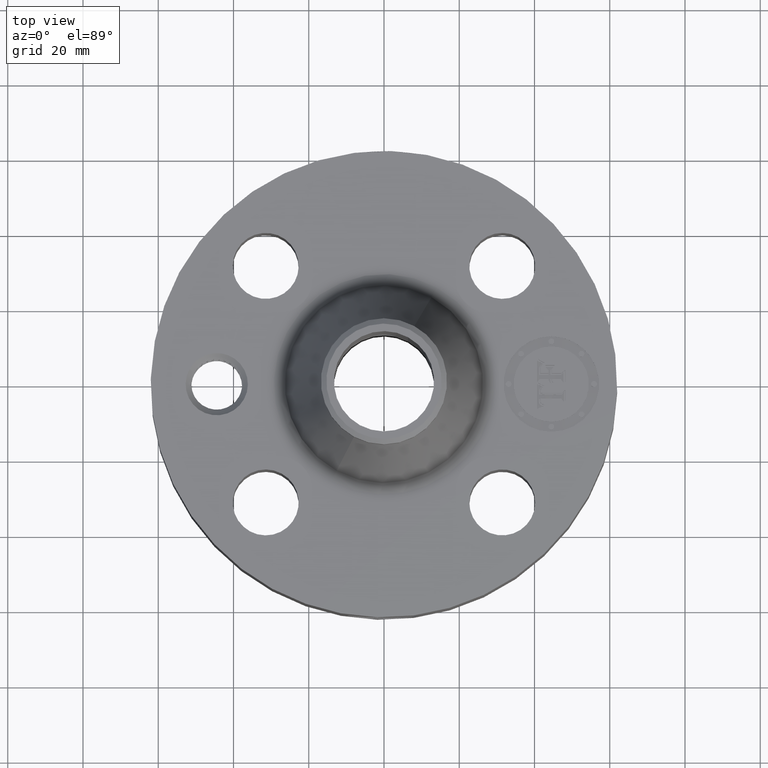
[diagram: clean part render]
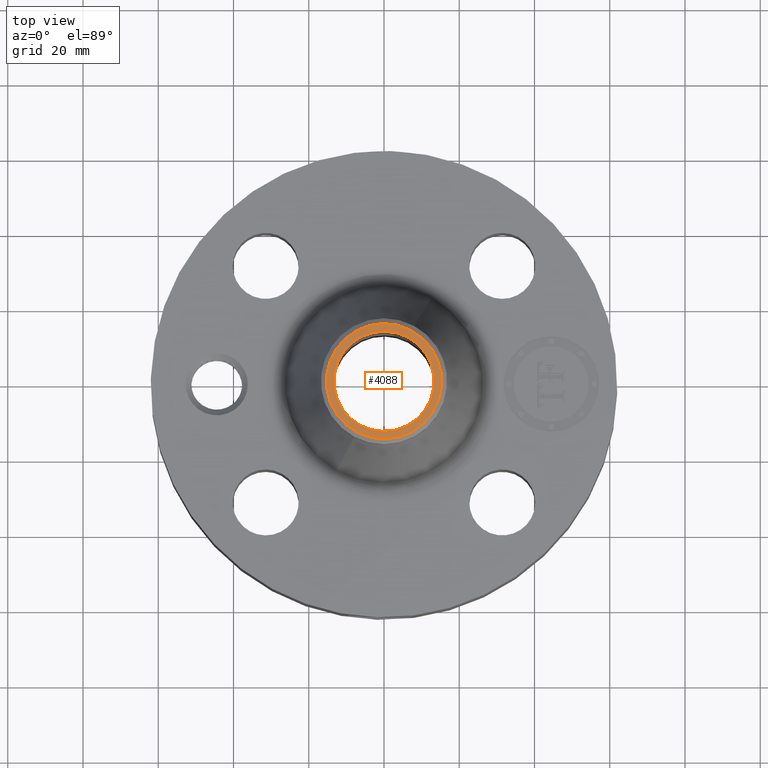
[diagram: same view with one face highlighted and labeled with its STEP entity id]
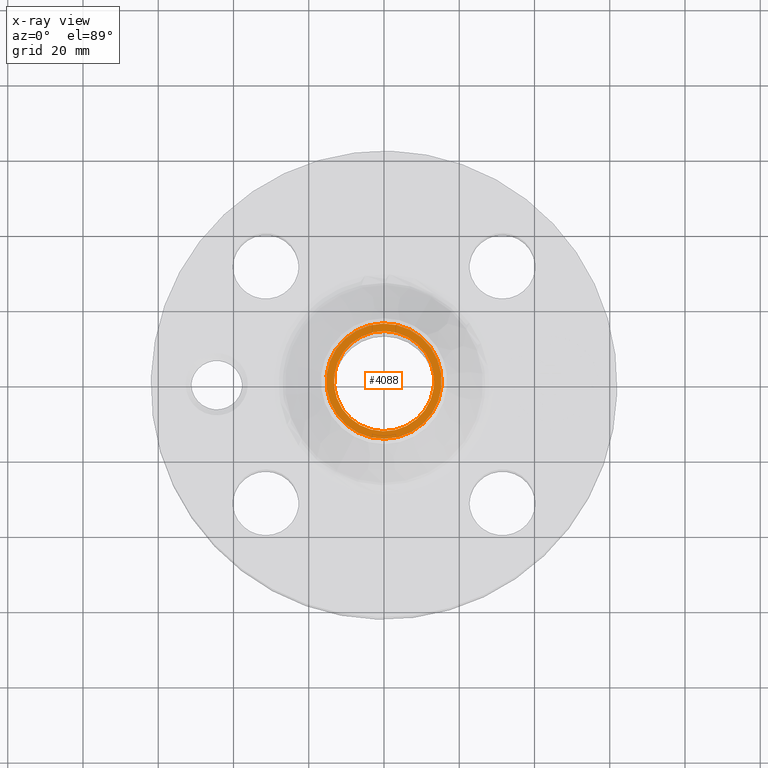
[diagram: x-ray of the same camera — body ghosted, the highlighted face saturated]
A machine part, top view. The second image highlights one B-rep face of the part: STEP entity #4088.
The next image is the same camera in x-ray: the body ghosted, the highlighted face saturated — about 0% of this face is hidden behind the body in this view.
In plain terms, the highlighted planar face has unit normal (0, 0, -1).
Its self-contained STEP definition (entity closure, byte-faithful):
#2819=AXIS2_PLACEMENT_3D('Circle Axis2P3D',#2817,#2818,$) ;
#2887=AXIS2_PLACEMENT_3D('Circle Axis2P3D',#2885,#2886,$) ;
#4064=AXIS2_PLACEMENT_3D('Plane Axis2P3D',#4061,#4062,#4063) ;
#4068=AXIS2_PLACEMENT_3D('Circle Axis2P3D',#4066,#4067,$) ;
#4077=AXIS2_PLACEMENT_3D('Circle Axis2P3D',#4075,#4076,$) ;
#2817=CARTESIAN_POINT('Axis2P3D Location',(0.,0.,3.31000000001)) ;
#2821=CARTESIAN_POINT('Vertex',(0.251458694999,0.460292053713,3.31000000001)) ;
#2823=CARTESIAN_POINT('Vertex',(-0.251458694999,-0.460292053713,3.31000000001)) ;
#2885=CARTESIAN_POINT('Axis2P3D Location',(0.,0.,3.31000000001)) ;
#4061=CARTESIAN_POINT('Axis2P3D Location',(0.,0.660000000003,3.31000000001)) ;
#4066=CARTESIAN_POINT('Axis2P3D Location',(0.,0.,3.31000000001)) ;
#4070=CARTESIAN_POINT('Vertex',(0.289208737409,-0.529393042839,3.31000000001)) ;
#4072=CARTESIAN_POINT('Vertex',(-0.289208737409,0.529393042839,3.31000000001)) ;
#4075=CARTESIAN_POINT('Axis2P3D Location',(0.,0.,3.31000000001)) ;
#2818=DIRECTION('Axis2P3D Direction',(0.,0.,-0.0393700787402)) ;
#2886=DIRECTION('Axis2P3D Direction',(0.,0.,-0.0393700787402)) ;
#4062=DIRECTION('Axis2P3D Direction',(0.,0.,-0.0393700787402)) ;
#4063=DIRECTION('Axis2P3D XDirection',(0.0393700787402,0.,0.)) ;
#4067=DIRECTION('Axis2P3D Direction',(0.,0.,-0.0393700787402)) ;
#4076=DIRECTION('Axis2P3D Direction',(0.,0.,-0.0393700787402)) ;
#4081=ORIENTED_EDGE('',*,*,#4074,.T.) ;
#4082=ORIENTED_EDGE('',*,*,#4079,.T.) ;
#4085=ORIENTED_EDGE('',*,*,#2889,.T.) ;
#4086=ORIENTED_EDGE('',*,*,#2825,.T.) ;
#4087=FACE_BOUND('',#4084,.T.) ;
#4088=ADVANCED_FACE('PartBody',(#4083,#4087),#4065,.F.) ;
#2820=CIRCLE('generated circle',#2819,0.524500000002) ;
#2888=CIRCLE('generated circle',#2887,0.524500000002) ;
#4069=CIRCLE('generated circle',#4068,0.603240157482) ;
#4078=CIRCLE('generated circle',#4077,0.603240157482) ;
#2825=EDGE_CURVE('',#2822,#2824,#2820,.T.) ;
#2889=EDGE_CURVE('',#2824,#2822,#2888,.T.) ;
#4074=EDGE_CURVE('',#4071,#4073,#4069,.F.) ;
#4079=EDGE_CURVE('',#4073,#4071,#4078,.F.) ;
#4080=EDGE_LOOP('',(#4081,#4082)) ;
#4084=EDGE_LOOP('',(#4085,#4086)) ;
#4083=FACE_OUTER_BOUND('',#4080,.T.) ;
#4065=PLANE('',#4064) ;
#2822=VERTEX_POINT('',#2821) ;
#2824=VERTEX_POINT('',#2823) ;
#4071=VERTEX_POINT('',#4070) ;
#4073=VERTEX_POINT('',#4072) ;